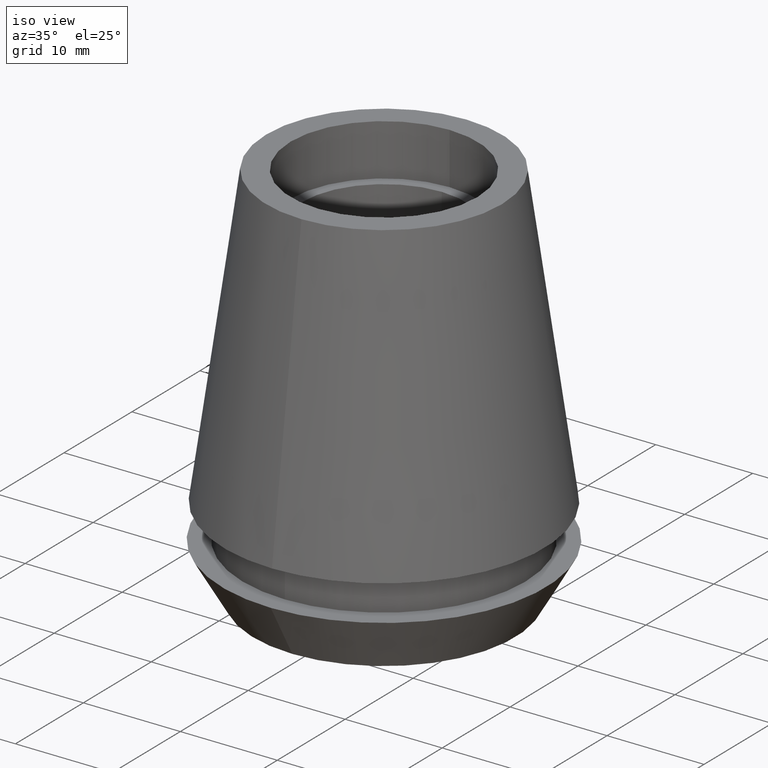
[diagram: clean part render]
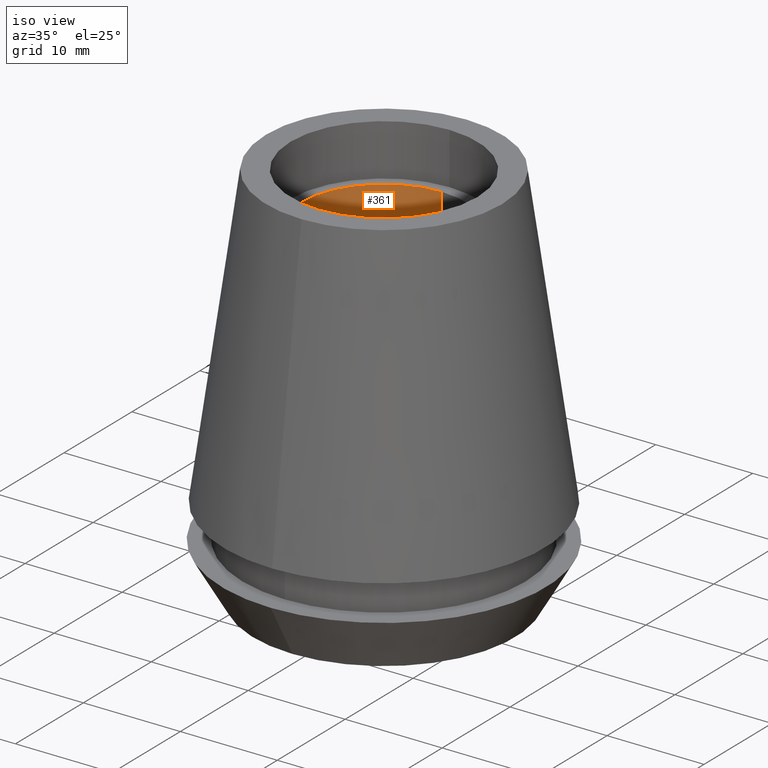
[diagram: same view with one face highlighted and labeled with its STEP entity id]
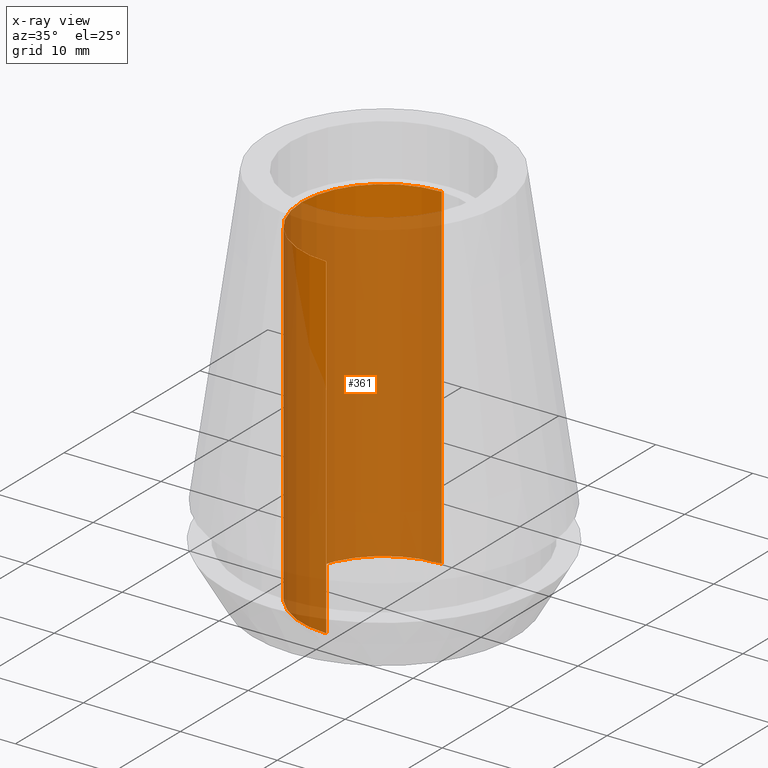
[diagram: x-ray of the same camera — body ghosted, the highlighted face saturated]
A machine part, iso view. The second image highlights one B-rep face of the part: STEP entity #361.
The next image is the same camera in x-ray: the body ghosted, the highlighted face saturated — about 90% of this face is hidden behind the body in this view.
In plain terms, the highlighted cylindrical surface (partial cylindrical patch) has radius 8.5 mm, axis along (0, 0, -1).
Its self-contained STEP definition (entity closure, byte-faithful):
#56=CARTESIAN_POINT('',(0.E0,1.583958170017E-14,-5.335E0));
#57=DIRECTION('',(0.E0,0.E0,1.E0));
#58=DIRECTION('',(0.E0,1.E0,0.E0));
#59=AXIS2_PLACEMENT_3D('',#56,#57,#58);
#64=DIRECTION('',(0.E0,0.E0,1.E0));
#65=VECTOR('',#64,3.4665E1);
#66=CARTESIAN_POINT('',(0.E0,8.5E0,-4.E1));
#67=LINE('',#66,#65);
#71=DIRECTION('',(0.E0,0.E0,1.E0));
#72=VECTOR('',#71,3.4665E1);
#73=CARTESIAN_POINT('',(0.E0,-8.5E0,-4.E1));
#74=LINE('',#73,#72);
#94=CARTESIAN_POINT('',(0.E0,1.583958170017E-14,-4.E1));
#95=DIRECTION('',(0.E0,0.E0,-1.E0));
#96=DIRECTION('',(0.E0,-1.E0,0.E0));
#97=AXIS2_PLACEMENT_3D('',#94,#95,#96);
#256=CARTESIAN_POINT('',(0.E0,-8.5E0,-5.335E0));
#257=CARTESIAN_POINT('',(0.E0,8.5E0,-5.335E0));
#258=VERTEX_POINT('',#256);
#259=VERTEX_POINT('',#257);
#260=CARTESIAN_POINT('',(0.E0,8.5E0,-4.E1));
#261=VERTEX_POINT('',#260);
#262=CARTESIAN_POINT('',(0.E0,-8.5E0,-4.E1));
#263=VERTEX_POINT('',#262);
#349=CARTESIAN_POINT('',(0.E0,1.583958170017E-14,2.E0));
#350=DIRECTION('',(0.E0,0.E0,-1.E0));
#351=DIRECTION('',(0.E0,-1.E0,0.E0));
#352=AXIS2_PLACEMENT_3D('',#349,#350,#351);
#353=CYLINDRICAL_SURFACE('',#352,8.5E0);
#354=ORIENTED_EDGE('',*,*,#339,.F.);
#356=ORIENTED_EDGE('',*,*,#355,.F.);
#357=ORIENTED_EDGE('',*,*,#342,.T.);
#358=ORIENTED_EDGE('',*,*,#329,.F.);
#359=EDGE_LOOP('',(#354,#356,#357,#358));
#360=FACE_OUTER_BOUND('',#359,.F.);
#60=CIRCLE('',#59,8.5E0);
#98=CIRCLE('',#97,8.5E0);
#329=EDGE_CURVE('',#259,#258,#60,.T.);
#339=EDGE_CURVE('',#261,#259,#67,.T.);
#342=EDGE_CURVE('',#263,#258,#74,.T.);
#355=EDGE_CURVE('',#263,#261,#98,.T.);
#361=ADVANCED_FACE('',(#360),#353,.F.);